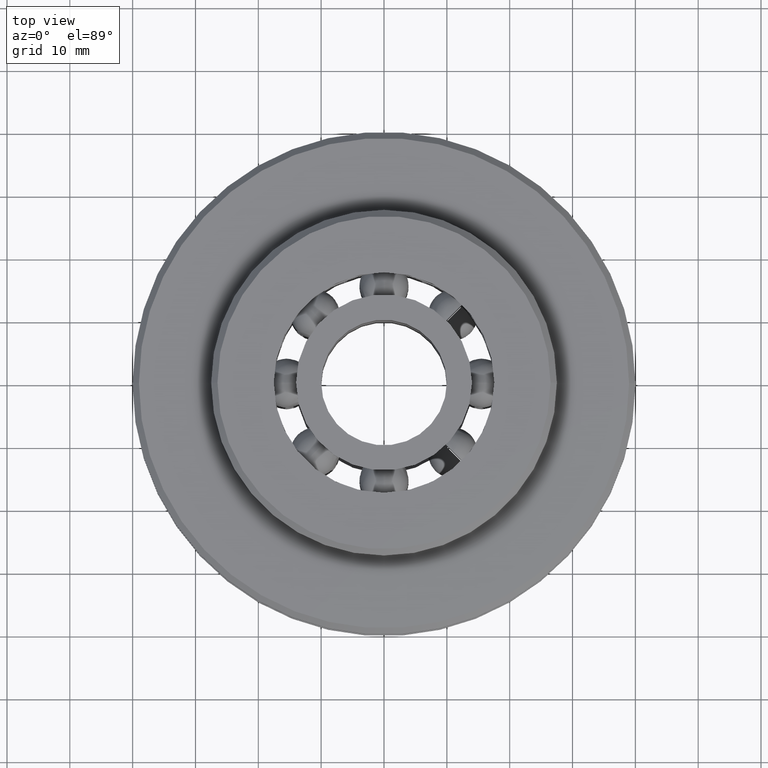
[diagram: clean part render]
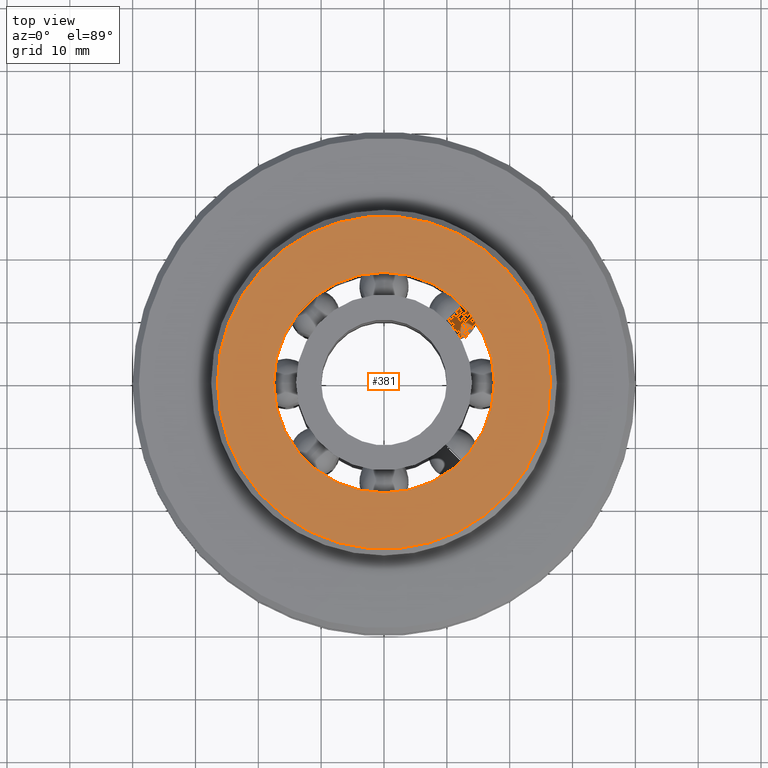
[diagram: same view with one face highlighted and labeled with its STEP entity id]
A machine part, top view. The second image highlights one B-rep face of the part: STEP entity #381.
In plain terms, the highlighted planar face has unit normal (0, 0, 1).
Its self-contained STEP definition (entity closure, byte-faithful):
#381=ADVANCED_FACE('',(#787,#788),#789,.T.);
#787=FACE_BOUND('',#1197,.T.);
#788=FACE_OUTER_BOUND('',#1198,.T.);
#789=PLANE('',#1199);
#1197=EDGE_LOOP('',(#2475,#2476));
#1198=EDGE_LOOP('',(#2477,#2478));
#1199=AXIS2_PLACEMENT_3D('',#2479,#2480,#2481);
#2475=ORIENTED_EDGE('',*,*,#3041,.T.);
#2476=ORIENTED_EDGE('',*,*,#2786,.T.);
#2477=ORIENTED_EDGE('',*,*,#2690,.T.);
#2478=ORIENTED_EDGE('',*,*,#3083,.T.);
#2479=CARTESIAN_POINT('',(13.25,0.0,13.0));
#2480=DIRECTION('',(0.0,0.0,1.0));
#2481=DIRECTION('',(1.0,0.0,0.0));
#2690=EDGE_CURVE('',#3313,#3317,#3319,.T.);
#2786=EDGE_CURVE('',#3479,#3477,#3480,.T.);
#3041=EDGE_CURVE('',#3477,#3479,#3858,.T.);
#3083=EDGE_CURVE('',#3317,#3313,#3900,.T.);
#3313=VERTEX_POINT('',#4974);
#3317=VERTEX_POINT('',#4979);
#3319=CIRCLE('',#4982,26.5);
#3477=VERTEX_POINT('',#5725);
#3479=VERTEX_POINT('',#5728);
#3480=CIRCLE('',#5729,17.55);
#3858=CIRCLE('',#7824,17.55);
#3900=CIRCLE('',#8075,26.5);
#4974=CARTESIAN_POINT('',(26.5,0.0,13.0));
#4979=CARTESIAN_POINT('',(-26.5,3.24531401774049E-015,13.0));
#4982=AXIS2_PLACEMENT_3D('',#8270,#8271,#8272);
#5725=CARTESIAN_POINT('',(17.55,0.0,13.0));
#5728=CARTESIAN_POINT('',(-17.55,2.1492551325036E-015,13.0));
#5729=AXIS2_PLACEMENT_3D('',#8398,#8399,#8400);
#7824=AXIS2_PLACEMENT_3D('',#8665,#8666,#8667);
#8075=AXIS2_PLACEMENT_3D('',#8689,#8690,#8691);
#8270=CARTESIAN_POINT('',(0.0,0.0,13.0));
#8271=DIRECTION('',(0.0,0.0,1.0));
#8272=DIRECTION('',(1.0,0.0,0.0));
#8398=CARTESIAN_POINT('',(0.0,0.0,13.0));
#8399=DIRECTION('',(0.0,0.0,-1.0));
#8400=DIRECTION('',(1.0,0.0,0.0));
#8665=CARTESIAN_POINT('',(0.0,0.0,13.0));
#8666=DIRECTION('',(0.0,0.0,-1.0));
#8667=DIRECTION('',(1.0,0.0,0.0));
#8689=CARTESIAN_POINT('',(0.0,0.0,13.0));
#8690=DIRECTION('',(0.0,0.0,1.0));
#8691=DIRECTION('',(1.0,0.0,0.0));